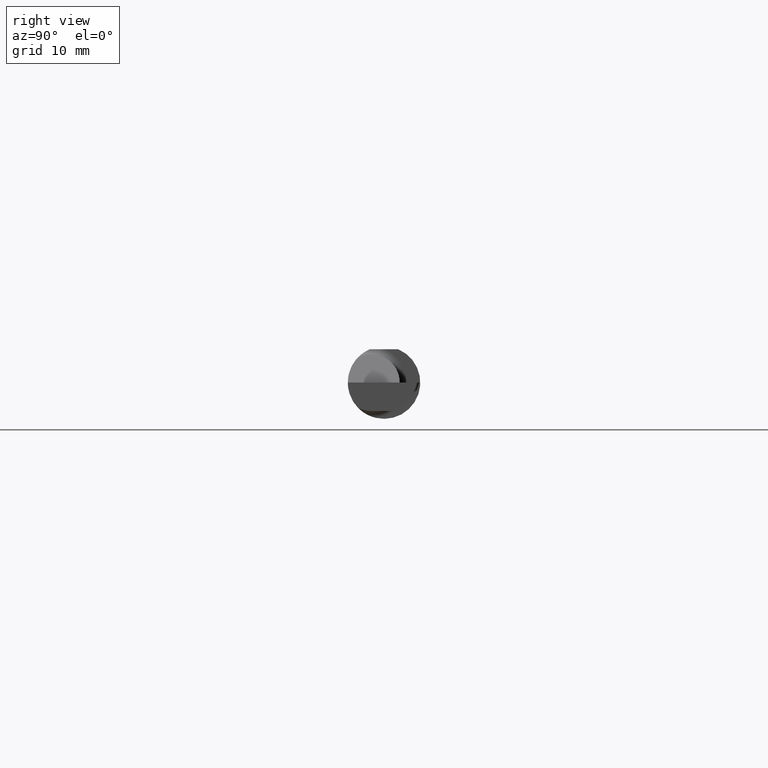
[diagram: clean part render]
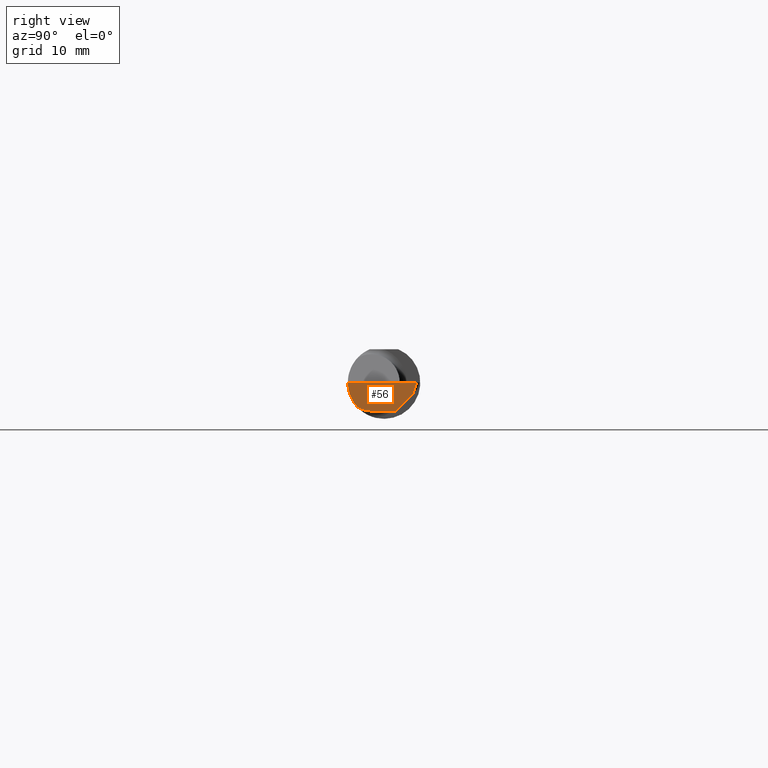
[diagram: same view with one face highlighted and labeled with its STEP entity id]
A machine part, right view. The second image highlights one B-rep face of the part: STEP entity #56.
In plain terms, the highlighted planar face has unit normal (-0.9992, 0.0174, 0.0349).
Its self-contained STEP definition (entity closure, byte-faithful):
#10 = EDGE_CURVE ( 'NONE', #69, #497, #265, .T. ) ;
#19 = ORIENTED_EDGE ( 'NONE', *, *, #260, .T. ) ;
#28 = CARTESIAN_POINT ( 'NONE',  ( 2.498428636891867782, 0.09954970949977201555, -0.03818642778127616377 ) ) ;
#51 = CARTESIAN_POINT ( 'NONE',  ( 2.493888306049834025, -0.04088383864926517508, -0.09800000000000008704 ) ) ;
#56 = ADVANCED_FACE ( 'NONE', ( #596 ), #328, .F. ) ;
#62 = DIRECTION ( 'NONE',  ( -0.9992386149554827179, 0.01744177490282193196, 0.03489949670250104552 ) ) ;
#67 = ORIENTED_EDGE ( 'NONE', *, *, #550, .T. ) ;
#69 = VERTEX_POINT ( 'NONE', #28 ) ;
#75 =( BOUNDED_CURVE ( )  B_SPLINE_CURVE ( 3, ( #681, #574, #366, #90 ),
 .UNSPECIFIED., .F., .T. ) 
 B_SPLINE_CURVE_WITH_KNOTS ( ( 4, 4 ),
 ( 6.253187659403604215, 6.746650124384891534 ),
 .UNSPECIFIED. ) 
 CURVE ( )  GEOMETRIC_REPRESENTATION_ITEM ( )  RATIONAL_B_SPLINE_CURVE ( ( 1.000000000000000000, 0.9798106333074689811, 0.9798106333074689811, 1.000000000000000000 ) ) 
 REPRESENTATION_ITEM ( '' )  );
#80 = VERTEX_POINT ( 'NONE', #509 ) ;
#87 = VERTEX_POINT ( 'NONE', #506 ) ;
#90 = CARTESIAN_POINT ( 'NONE',  ( 2.493833913251130241, -0.04400000000000026112, -0.09800000000000008704 ) ) ;
#97 = LINE ( 'NONE', #51, #143 ) ;
#100 = VERTEX_POINT ( 'NONE', #349 ) ;
#129 = CARTESIAN_POINT ( 'NONE',  ( 2.499991849855255133, 0.1126983510377570219, 0.000000000000000000 ) ) ;
#143 = VECTOR ( 'NONE', #263, 39.37007874015748854 ) ;
#152 = ORIENTED_EDGE ( 'NONE', *, *, #252, .F. ) ;
#157 = VECTOR ( 'NONE', #458, 39.37007874015747433 ) ;
#158 = VERTEX_POINT ( 'NONE', #408 ) ;
#168 =( BOUNDED_CURVE ( )  B_SPLINE_CURVE ( 3, ( #356, #311, #413, #192 ),
 .UNSPECIFIED., .F., .T. ) 
 B_SPLINE_CURVE_WITH_KNOTS ( ( 4, 4 ),
 ( 0.3451966888490702323, 1.107331509589587926 ),
 .UNSPECIFIED. ) 
 CURVE ( )  GEOMETRIC_REPRESENTATION_ITEM ( )  RATIONAL_B_SPLINE_CURVE ( ( 1.000000000000000000, 0.9521787881681380572, 0.9521787881681380572, 1.000000000000000000 ) ) 
 REPRESENTATION_ITEM ( '' )  );
#180 = CARTESIAN_POINT ( 'NONE',  ( 2.499998666069249253, 0.1130888516759625262, 0.000000000000000000 ) ) ;
#191 = LINE ( 'NONE', #688, #422 ) ;
#192 = CARTESIAN_POINT ( 'NONE',  ( 2.495842809704562626, -0.1250000000000000000, 0.000000000000000000 ) ) ;
#231 = LINE ( 'NONE', #180, #157 ) ;
#249 = DIRECTION ( 'NONE',  ( -0.03701368837992363020, -0.7066222423871550973, -0.7066222423871629799 ) ) ;
#252 = EDGE_CURVE ( 'NONE', #80, #100, #168, .T. ) ;
#260 = EDGE_CURVE ( 'NONE', #80, #158, #75, .T. ) ;
#263 = DIRECTION ( 'NONE',  ( -0.01745240643727527866, -0.9998476951563912696, 0.000000000000000000 ) ) ;
#265 = LINE ( 'NONE', #544, #310 ) ;
#310 = VECTOR ( 'NONE', #650, 39.37007874015748854 ) ;
#311 = CARTESIAN_POINT ( 'NONE',  ( 2.493862026000344123, -0.1128945894460738342, -0.06276352435079123049 ) ) ;
#316 = EDGE_LOOP ( 'NONE', ( #645, #425, #67, #152, #19, #432 ) ) ;
#328 = PLANE ( 'NONE',  #491 ) ;
#349 = CARTESIAN_POINT ( 'NONE',  ( 2.495842809704562626, -0.1250000000000000000, 0.000000000000000000 ) ) ;
#356 = CARTESIAN_POINT ( 'NONE',  ( 2.493431982762754462, -0.09042045454545430405, -0.08630840862739524999 ) ) ;
#366 = CARTESIAN_POINT ( 'NONE',  ( 2.493549648562250809, -0.06028551311893212694, -0.09800000000000005929 ) ) ;
#408 = CARTESIAN_POINT ( 'NONE',  ( 2.493833913251130241, -0.04400000000000026112, -0.09800000000000008704 ) ) ;
#413 = CARTESIAN_POINT ( 'NONE',  ( 2.494705994581233099, -0.1250000000000000278, -0.03254916765648425275 ) ) ;
#422 = VECTOR ( 'NONE', #249, 39.37007874015748143 ) ;
#425 = ORIENTED_EDGE ( 'NONE', *, *, #10, .T. ) ;
#432 = ORIENTED_EDGE ( 'NONE', *, *, #478, .F. ) ;
#458 = DIRECTION ( 'NONE',  ( -0.01745240643727528213, -0.9998476951563914916, 0.000000000000000000 ) ) ;
#478 = EDGE_CURVE ( 'NONE', #87, #158, #97, .T. ) ;
#491 = AXIS2_PLACEMENT_3D ( 'NONE', #542, #62, #562 ) ;
#497 = VERTEX_POINT ( 'NONE', #129 ) ;
#506 = CARTESIAN_POINT ( 'NONE',  ( 2.495295532964209695, 0.03973613728104874454, -0.09800000000000008704 ) ) ;
#509 = CARTESIAN_POINT ( 'NONE',  ( 2.493431982762754462, -0.09042045454545430405, -0.08630840862739524999 ) ) ;
#542 = CARTESIAN_POINT ( 'NONE',  ( 2.499998666069249253, 0.1130888516759625262, 0.000000000000000000 ) ) ;
#544 = CARTESIAN_POINT ( 'NONE',  ( 2.499996773571325548, 0.1127397658540113118, 0.0001202773598626410973 ) ) ;
#550 = EDGE_CURVE ( 'NONE', #497, #100, #231, .T. ) ;
#562 = DIRECTION ( 'NONE',  ( 0.03490480639812536257, 0.000000000000000000, 0.9993906415863165194 ) ) ;
#574 = CARTESIAN_POINT ( 'NONE',  ( 2.493412911089820660, -0.07607783494366276988, -0.09402249966297454575 ) ) ;
#596 = FACE_OUTER_BOUND ( 'NONE', #316, .T. ) ;
#645 = ORIENTED_EDGE ( 'NONE', *, *, #657, .F. ) ;
#650 = DIRECTION ( 'NONE',  ( 0.03867711768362983027, 0.3253245514560478280, 0.9448111011136606230 ) ) ;
#657 = EDGE_CURVE ( 'NONE', #69, #87, #191, .T. ) ;
#681 = CARTESIAN_POINT ( 'NONE',  ( 2.493431982762754462, -0.09042045454545430405, -0.08630840862739524999 ) ) ;
#688 = CARTESIAN_POINT ( 'NONE',  ( 2.495747786320908546, 0.04837003179481734472, -0.08936610548623138972 ) ) ;